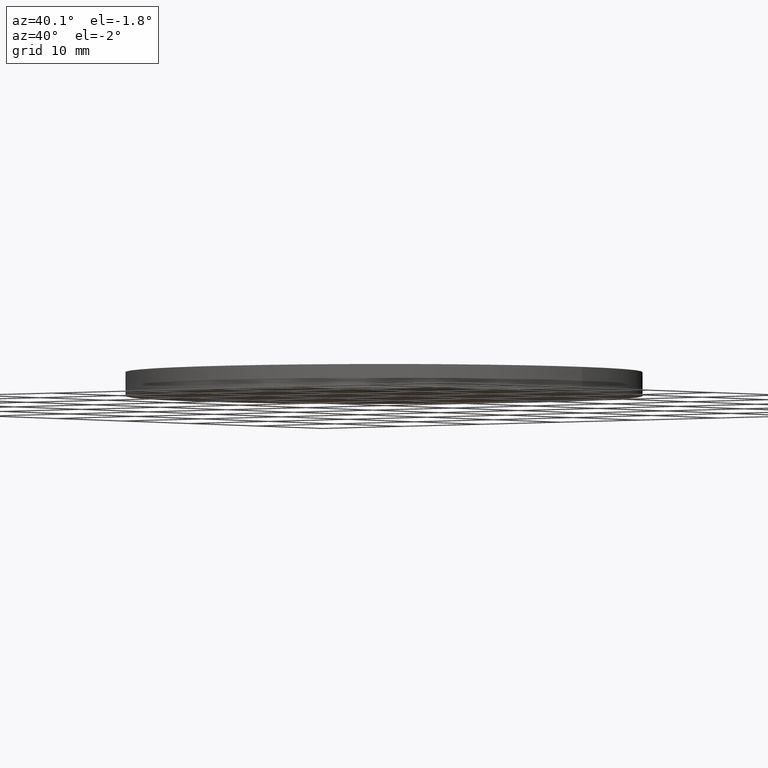
[diagram: clean part render]
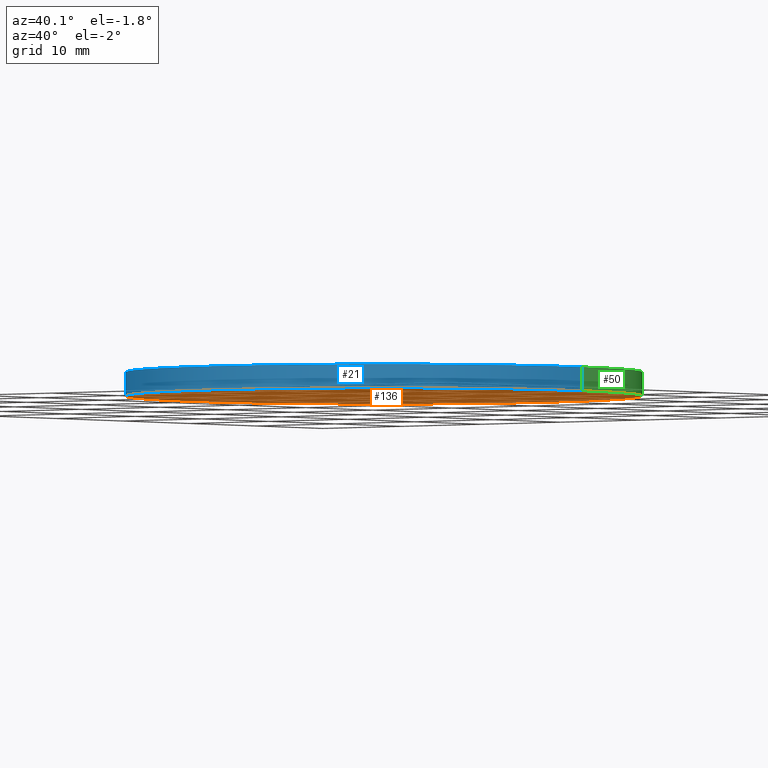
[diagram: same view with three faces highlighted in distinct colors, each labeled with its STEP entity id]
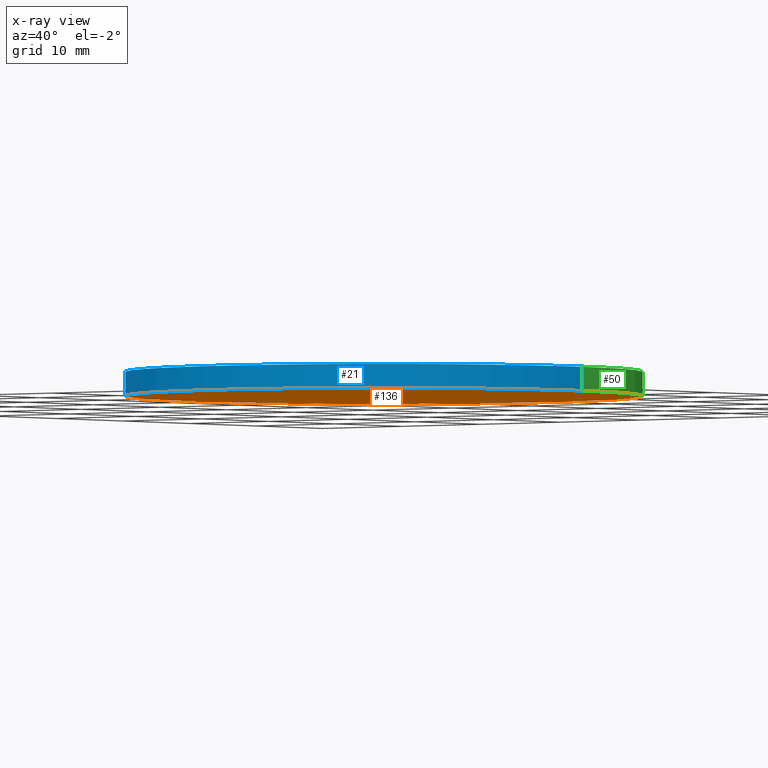
[diagram: x-ray of the same camera — body ghosted, the three highlighted faces saturated]
A machine part, auxiliary view with three faces highlighted in distinct colors.
The next image is the same camera in x-ray (body ghosted, the three faces saturated) — at least one of them is partly hidden behind the body in this view.
Their STEP definitions:

[orange] entity #136 — the highlighted planar face has unit normal (0, 0, 1).
#3 = ORIENTED_EDGE ( 'NONE', *, *, #105, .F. ) ;
#10 = FACE_OUTER_BOUND ( 'NONE', #85, .T. ) ;
#13 = CIRCLE ( 'NONE', #39, 24.99999999999999300 ) ;
#14 = DIRECTION ( 'NONE',  ( 0.0000000000000000000, 0.0000000000000000000, 1.000000000000000000 ) ) ;
#15 = EDGE_CURVE ( 'NONE', #74, #40, #112, .T. ) ;
#16 = DIRECTION ( 'NONE',  ( 1.000000000000000000, 0.0000000000000000000, 0.0000000000000000000 ) ) ;
#34 = CARTESIAN_POINT ( 'NONE',  ( 217.2299678845674000, 123.1264836690531900, 0.0000000000000000000 ) ) ;
#39 = AXIS2_PLACEMENT_3D ( 'NONE', #120, #73, #59 ) ;
#40 = VERTEX_POINT ( 'NONE', #98 ) ;
#46 = PLANE ( 'NONE',  #102 ) ;
#57 = ORIENTED_EDGE ( 'NONE', *, *, #15, .F. ) ;
#59 = DIRECTION ( 'NONE',  ( 1.000000000000000000, 0.0000000000000000000, 0.0000000000000000000 ) ) ;
#66 = AXIS2_PLACEMENT_3D ( 'NONE', #99, #14, #16 ) ;
#73 = DIRECTION ( 'NONE',  ( 0.0000000000000000000, 0.0000000000000000000, 1.000000000000000000 ) ) ;
#74 = VERTEX_POINT ( 'NONE', #126 ) ;
#80 = DIRECTION ( 'NONE',  ( 1.000000000000000000, 0.0000000000000000000, -0.0000000000000000000 ) ) ;
#85 = EDGE_LOOP ( 'NONE', ( #3, #57 ) ) ;
#98 = CARTESIAN_POINT ( 'NONE',  ( 192.2299678845674000, 123.1264836690531900, 0.0000000000000000000 ) ) ;
#99 = CARTESIAN_POINT ( 'NONE',  ( 217.2299678845674000, 123.1264836690531900, 0.0000000000000000000 ) ) ;
#102 = AXIS2_PLACEMENT_3D ( 'NONE', #34, #121, #80 ) ;
#105 = EDGE_CURVE ( 'NONE', #40, #74, #13, .T. ) ;
#112 = CIRCLE ( 'NONE', #66, 24.99999999999999300 ) ;
#120 = CARTESIAN_POINT ( 'NONE',  ( 217.2299678845674000, 123.1264836690531900, 0.0000000000000000000 ) ) ;
#121 = DIRECTION ( 'NONE',  ( 0.0000000000000000000, 0.0000000000000000000, 1.000000000000000000 ) ) ;
#126 = CARTESIAN_POINT ( 'NONE',  ( 242.2299678845673700, 123.1264836690531900, 0.0000000000000000000 ) ) ;
#136 = ADVANCED_FACE ( 'NONE', ( #10 ), #46, .F. ) ;

[blue] entity #21 — the highlighted cylindrical surface (partial cylindrical patch) has radius 25 mm, axis along (-0, -0, -1).
#4 = CARTESIAN_POINT ( 'NONE',  ( 192.2299678845674000, 123.1264836690531900, 2.299999999999999800 ) ) ;
#11 = ORIENTED_EDGE ( 'NONE', *, *, #105, .T. ) ;
#13 = CIRCLE ( 'NONE', #39, 24.99999999999999300 ) ;
#21 = ADVANCED_FACE ( 'NONE', ( #92 ), #132, .T. ) ;
#23 = LINE ( 'NONE', #28, #81 ) ;
#28 = CARTESIAN_POINT ( 'NONE',  ( 192.2299678845674000, 123.1264836690531900, 2.299999999999999800 ) ) ;
#31 = CARTESIAN_POINT ( 'NONE',  ( 242.2299678845673700, 123.1264836690531900, 2.299999999999999800 ) ) ;
#33 = VERTEX_POINT ( 'NONE', #4 ) ;
#39 = AXIS2_PLACEMENT_3D ( 'NONE', #120, #73, #59 ) ;
#40 = VERTEX_POINT ( 'NONE', #98 ) ;
#41 = EDGE_CURVE ( 'NONE', #33, #40, #23, .T. ) ;
#43 = CARTESIAN_POINT ( 'NONE',  ( 242.2299678845673700, 123.1264836690531900, 2.299999999999999800 ) ) ;
#54 = LINE ( 'NONE', #31, #103 ) ;
#56 = DIRECTION ( 'NONE',  ( -1.000000000000000000, 0.0000000000000000000, 0.0000000000000000000 ) ) ;
#59 = DIRECTION ( 'NONE',  ( 1.000000000000000000, 0.0000000000000000000, 0.0000000000000000000 ) ) ;
#65 = ORIENTED_EDGE ( 'NONE', *, *, #41, .T. ) ;
#71 = CARTESIAN_POINT ( 'NONE',  ( 217.2299678845674000, 123.1264836690531900, 2.299999999999999800 ) ) ;
#73 = DIRECTION ( 'NONE',  ( 0.0000000000000000000, 0.0000000000000000000, 1.000000000000000000 ) ) ;
#74 = VERTEX_POINT ( 'NONE', #126 ) ;
#76 = AXIS2_PLACEMENT_3D ( 'NONE', #71, #135, #100 ) ;
#79 = EDGE_CURVE ( 'NONE', #134, #74, #54, .T. ) ;
#81 = VECTOR ( 'NONE', #87, 1000.000000000000000 ) ;
#87 = DIRECTION ( 'NONE',  ( -0.0000000000000000000, -0.0000000000000000000, -1.000000000000000000 ) ) ;
#89 = CARTESIAN_POINT ( 'NONE',  ( 217.2299678845674000, 123.1264836690531900, 2.299999999999999800 ) ) ;
#92 = FACE_OUTER_BOUND ( 'NONE', #115, .T. ) ;
#94 = AXIS2_PLACEMENT_3D ( 'NONE', #89, #107, #56 ) ;
#98 = CARTESIAN_POINT ( 'NONE',  ( 192.2299678845674000, 123.1264836690531900, 0.0000000000000000000 ) ) ;
#100 = DIRECTION ( 'NONE',  ( 1.000000000000000000, 0.0000000000000000000, 0.0000000000000000000 ) ) ;
#103 = VECTOR ( 'NONE', #128, 1000.000000000000000 ) ;
#105 = EDGE_CURVE ( 'NONE', #40, #74, #13, .T. ) ;
#107 = DIRECTION ( 'NONE',  ( -0.0000000000000000000, -0.0000000000000000000, -1.000000000000000000 ) ) ;
#111 = EDGE_CURVE ( 'NONE', #33, #134, #127, .T. ) ;
#115 = EDGE_LOOP ( 'NONE', ( #122, #129, #65, #11 ) ) ;
#120 = CARTESIAN_POINT ( 'NONE',  ( 217.2299678845674000, 123.1264836690531900, 0.0000000000000000000 ) ) ;
#122 = ORIENTED_EDGE ( 'NONE', *, *, #79, .F. ) ;
#126 = CARTESIAN_POINT ( 'NONE',  ( 242.2299678845673700, 123.1264836690531900, 0.0000000000000000000 ) ) ;
#127 = CIRCLE ( 'NONE', #76, 24.99999999999999300 ) ;
#128 = DIRECTION ( 'NONE',  ( -0.0000000000000000000, -0.0000000000000000000, -1.000000000000000000 ) ) ;
#129 = ORIENTED_EDGE ( 'NONE', *, *, #111, .F. ) ;
#132 = CYLINDRICAL_SURFACE ( 'NONE', #94, 24.99999999999999300 ) ;
#134 = VERTEX_POINT ( 'NONE', #43 ) ;
#135 = DIRECTION ( 'NONE',  ( 0.0000000000000000000, 0.0000000000000000000, 1.000000000000000000 ) ) ;

[green] entity #50 — the highlighted cylindrical surface (partial cylindrical patch) has radius 25 mm, axis along (-0, -0, -1).
#4 = CARTESIAN_POINT ( 'NONE',  ( 192.2299678845674000, 123.1264836690531900, 2.299999999999999800 ) ) ;
#14 = DIRECTION ( 'NONE',  ( 0.0000000000000000000, 0.0000000000000000000, 1.000000000000000000 ) ) ;
#15 = EDGE_CURVE ( 'NONE', #74, #40, #112, .T. ) ;
#16 = DIRECTION ( 'NONE',  ( 1.000000000000000000, 0.0000000000000000000, 0.0000000000000000000 ) ) ;
#23 = LINE ( 'NONE', #28, #81 ) ;
#26 = FACE_OUTER_BOUND ( 'NONE', #83, .T. ) ;
#28 = CARTESIAN_POINT ( 'NONE',  ( 192.2299678845674000, 123.1264836690531900, 2.299999999999999800 ) ) ;
#29 = ORIENTED_EDGE ( 'NONE', *, *, #79, .T. ) ;
#30 = CARTESIAN_POINT ( 'NONE',  ( 217.2299678845674000, 123.1264836690531900, 2.299999999999999800 ) ) ;
#31 = CARTESIAN_POINT ( 'NONE',  ( 242.2299678845673700, 123.1264836690531900, 2.299999999999999800 ) ) ;
#33 = VERTEX_POINT ( 'NONE', #4 ) ;
#37 = CARTESIAN_POINT ( 'NONE',  ( 217.2299678845674000, 123.1264836690531900, 2.299999999999999800 ) ) ;
#40 = VERTEX_POINT ( 'NONE', #98 ) ;
#41 = EDGE_CURVE ( 'NONE', #33, #40, #23, .T. ) ;
#42 = DIRECTION ( 'NONE',  ( -1.000000000000000000, 0.0000000000000000000, 0.0000000000000000000 ) ) ;
#43 = CARTESIAN_POINT ( 'NONE',  ( 242.2299678845673700, 123.1264836690531900, 2.299999999999999800 ) ) ;
#49 = AXIS2_PLACEMENT_3D ( 'NONE', #37, #119, #93 ) ;
#50 = ADVANCED_FACE ( 'NONE', ( #26 ), #110, .T. ) ;
#54 = LINE ( 'NONE', #31, #103 ) ;
#66 = AXIS2_PLACEMENT_3D ( 'NONE', #99, #14, #16 ) ;
#74 = VERTEX_POINT ( 'NONE', #126 ) ;
#79 = EDGE_CURVE ( 'NONE', #134, #74, #54, .T. ) ;
#81 = VECTOR ( 'NONE', #87, 1000.000000000000000 ) ;
#83 = EDGE_LOOP ( 'NONE', ( #140, #29, #106, #116 ) ) ;
#86 = AXIS2_PLACEMENT_3D ( 'NONE', #30, #117, #42 ) ;
#87 = DIRECTION ( 'NONE',  ( -0.0000000000000000000, -0.0000000000000000000, -1.000000000000000000 ) ) ;
#93 = DIRECTION ( 'NONE',  ( 1.000000000000000000, 0.0000000000000000000, 0.0000000000000000000 ) ) ;
#98 = CARTESIAN_POINT ( 'NONE',  ( 192.2299678845674000, 123.1264836690531900, 0.0000000000000000000 ) ) ;
#99 = CARTESIAN_POINT ( 'NONE',  ( 217.2299678845674000, 123.1264836690531900, 0.0000000000000000000 ) ) ;
#103 = VECTOR ( 'NONE', #128, 1000.000000000000000 ) ;
#104 = CIRCLE ( 'NONE', #49, 24.99999999999999300 ) ;
#106 = ORIENTED_EDGE ( 'NONE', *, *, #15, .T. ) ;
#110 = CYLINDRICAL_SURFACE ( 'NONE', #86, 24.99999999999999300 ) ;
#112 = CIRCLE ( 'NONE', #66, 24.99999999999999300 ) ;
#116 = ORIENTED_EDGE ( 'NONE', *, *, #41, .F. ) ;
#117 = DIRECTION ( 'NONE',  ( -0.0000000000000000000, -0.0000000000000000000, -1.000000000000000000 ) ) ;
#119 = DIRECTION ( 'NONE',  ( 0.0000000000000000000, 0.0000000000000000000, 1.000000000000000000 ) ) ;
#126 = CARTESIAN_POINT ( 'NONE',  ( 242.2299678845673700, 123.1264836690531900, 0.0000000000000000000 ) ) ;
#128 = DIRECTION ( 'NONE',  ( -0.0000000000000000000, -0.0000000000000000000, -1.000000000000000000 ) ) ;
#131 = EDGE_CURVE ( 'NONE', #134, #33, #104, .T. ) ;
#134 = VERTEX_POINT ( 'NONE', #43 ) ;
#140 = ORIENTED_EDGE ( 'NONE', *, *, #131, .F. ) ;